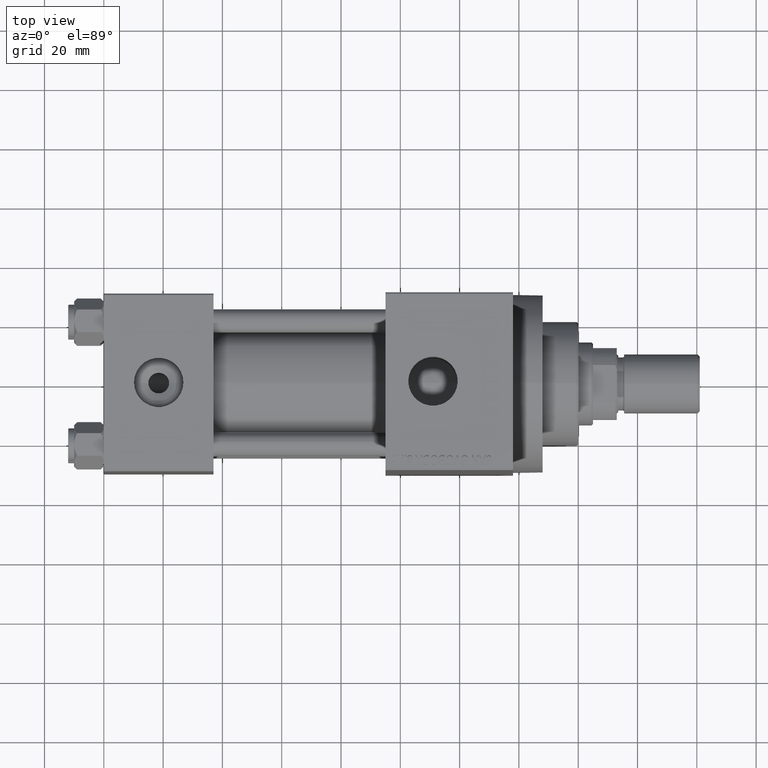
[diagram: clean part render]
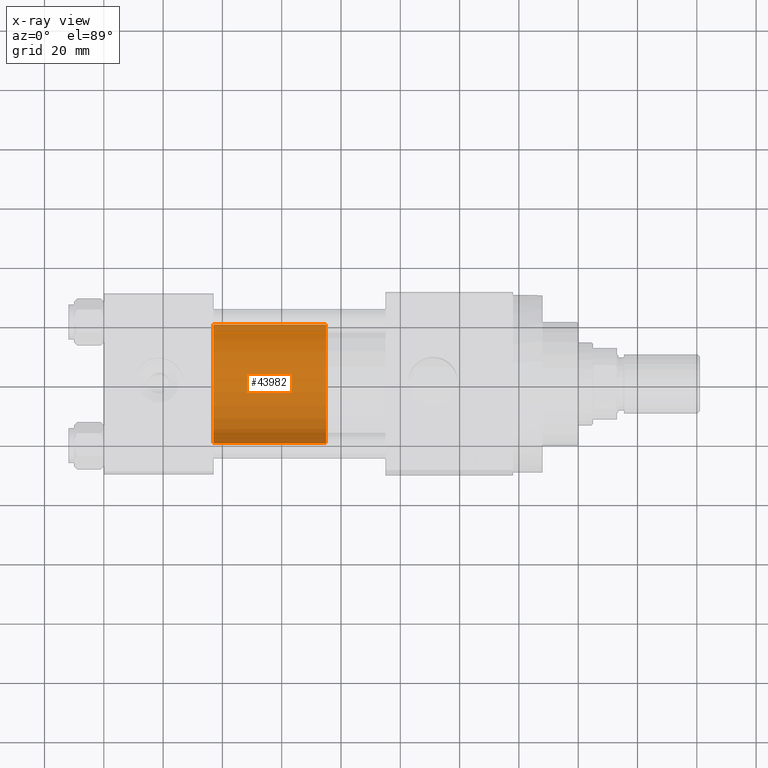
[diagram: x-ray — body ghosted, one internal face saturated and labeled with its STEP entity id]
A machine part, top view, then the same camera in x-ray: the body is ghosted and one INTERNAL B-rep face — a face not visible from any outside direction — is saturated and labeled: STEP entity #43982.
In plain terms, the highlighted cylindrical surface (partial cylindrical patch) has radius 20 mm, axis along (-1, 0, 0).
Its self-contained STEP definition (entity closure, byte-faithful):
#1195 = CARTESIAN_POINT ( 'NONE',  ( 20.00000000000000000, 2.449293598294706513E-15, 0.000000000000000000 ) ) ;
#1220 = DIRECTION ( 'NONE',  ( 1.000000000000000000, 0.000000000000000000, 0.000000000000000000 ) ) ;
#1708 = DIRECTION ( 'NONE',  ( 1.000000000000000000, 0.000000000000000000, 0.000000000000000000 ) ) ;
#2086 = ORIENTED_EDGE ( 'NONE', *, *, #25909, .F. ) ;
#2610 = DIRECTION ( 'NONE',  ( -0.000000000000000000, -0.000000000000000000, -1.000000000000000000 ) ) ;
#3074 = LINE ( 'NONE', #7173, #8121 ) ;
#4464 = CYLINDRICAL_SURFACE ( 'NONE', #28929, 20.00000000000000000 ) ;
#4608 = VERTEX_POINT ( 'NONE', #18872 ) ;
#4814 = EDGE_CURVE ( 'NONE', #40849, #45174, #26883, .T. ) ;
#4841 = CARTESIAN_POINT ( 'NONE',  ( 0.000000000000000000, 0.000000000000000000, 0.000000000000000000 ) ) ;
#5326 = DIRECTION ( 'NONE',  ( 0.000000000000000000, 0.000000000000000000, 1.000000000000000000 ) ) ;
#7173 = CARTESIAN_POINT ( 'NONE',  ( -20.00000000000000000, 0.000000000000000000, 38.00000000000000000 ) ) ;
#8073 = EDGE_CURVE ( 'NONE', #4608, #27142, #39345, .T. ) ;
#8121 = VECTOR ( 'NONE', #11018, 1000.000000000000000 ) ;
#10599 = ORIENTED_EDGE ( 'NONE', *, *, #4814, .T. ) ;
#11018 = DIRECTION ( 'NONE',  ( -0.000000000000000000, -0.000000000000000000, -1.000000000000000000 ) ) ;
#15306 = DIRECTION ( 'NONE',  ( -0.000000000000000000, -0.000000000000000000, -1.000000000000000000 ) ) ;
#15545 = DIRECTION ( 'NONE',  ( -1.000000000000000000, 0.000000000000000000, 0.000000000000000000 ) ) ;
#16268 = CARTESIAN_POINT ( 'NONE',  ( -20.00000000000000000, 0.000000000000000000, 38.00000000000000000 ) ) ;
#16778 = EDGE_LOOP ( 'NONE', ( #17255, #47170, #10599, #2086 ) ) ;
#17255 = ORIENTED_EDGE ( 'NONE', *, *, #8073, .F. ) ;
#18872 = CARTESIAN_POINT ( 'NONE',  ( 20.00000000000000000, 2.449293598294706513E-15, 38.00000000000000000 ) ) ;
#18921 = FACE_OUTER_BOUND ( 'NONE', #16778, .T. ) ;
#24779 = CARTESIAN_POINT ( 'NONE',  ( 20.00000000000000000, 2.449293598294706513E-15, 38.00000000000000000 ) ) ;
#25021 = LINE ( 'NONE', #24779, #47366 ) ;
#25909 = EDGE_CURVE ( 'NONE', #27142, #45174, #3074, .T. ) ;
#26883 = CIRCLE ( 'NONE', #34630, 20.00000000000000000 ) ;
#27142 = VERTEX_POINT ( 'NONE', #16268 ) ;
#27798 = AXIS2_PLACEMENT_3D ( 'NONE', #38375, #5326, #1708 ) ;
#28929 = AXIS2_PLACEMENT_3D ( 'NONE', #30718, #15306, #15545 ) ;
#30718 = CARTESIAN_POINT ( 'NONE',  ( 0.000000000000000000, 0.000000000000000000, 38.00000000000000000 ) ) ;
#34071 = CARTESIAN_POINT ( 'NONE',  ( -20.00000000000000000, 0.000000000000000000, 0.000000000000000000 ) ) ;
#34263 = DIRECTION ( 'NONE',  ( 0.000000000000000000, 0.000000000000000000, 1.000000000000000000 ) ) ;
#34630 = AXIS2_PLACEMENT_3D ( 'NONE', #4841, #34263, #1220 ) ;
#38375 = CARTESIAN_POINT ( 'NONE',  ( 0.000000000000000000, 0.000000000000000000, 38.00000000000000000 ) ) ;
#38898 = EDGE_CURVE ( 'NONE', #4608, #40849, #25021, .T. ) ;
#39345 = CIRCLE ( 'NONE', #27798, 20.00000000000000000 ) ;
#40849 = VERTEX_POINT ( 'NONE', #1195 ) ;
#43982 = ADVANCED_FACE ( 'NONE', ( #18921 ), #4464, .T. ) ;
#45174 = VERTEX_POINT ( 'NONE', #34071 ) ;
#47170 = ORIENTED_EDGE ( 'NONE', *, *, #38898, .T. ) ;
#47366 = VECTOR ( 'NONE', #2610, 1000.000000000000000 ) ;